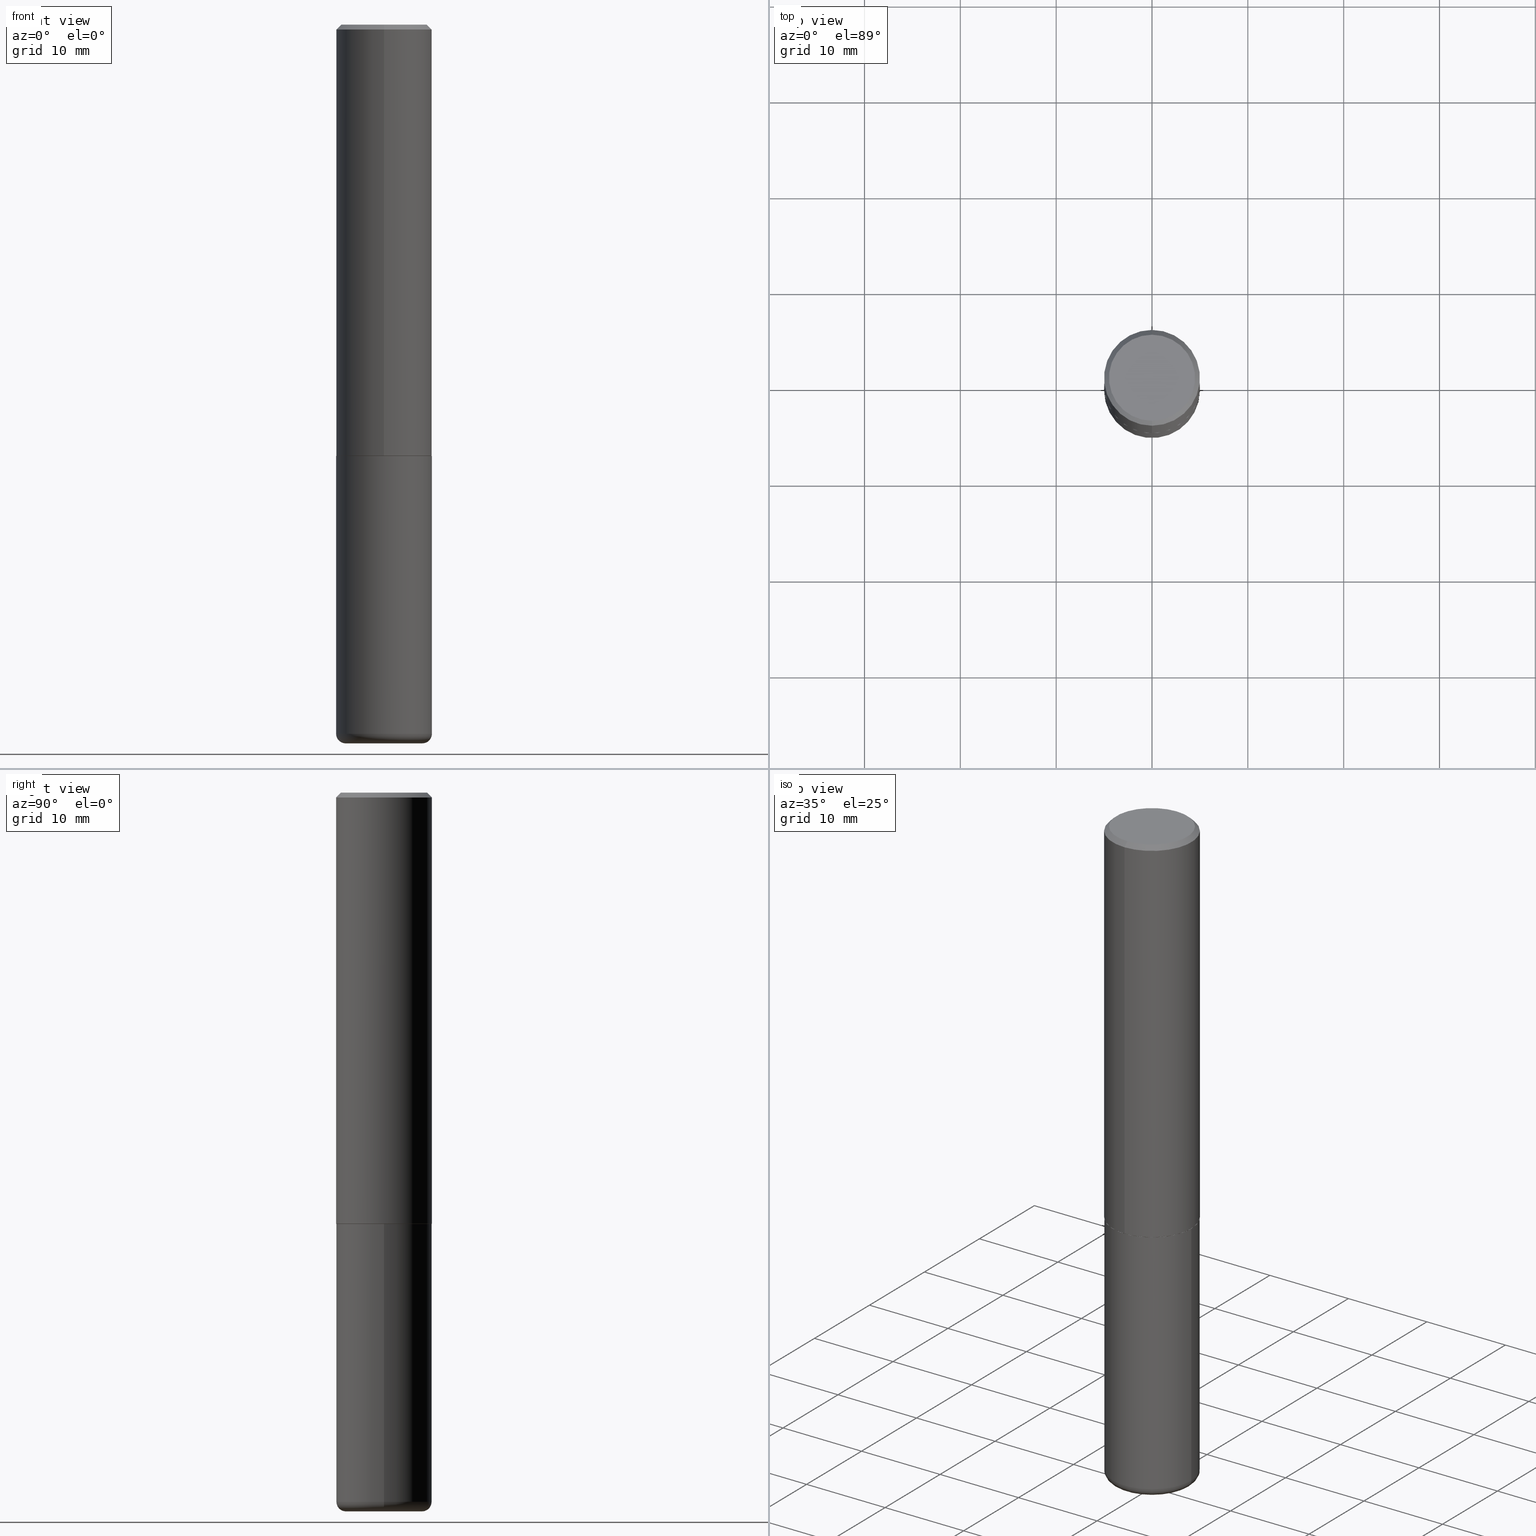
[diagram: canonical four-view strip — front | top / right | iso, engineering-drawing reading convention]
A machine part, canonical four-view strip (front | top / right | iso — engineering-drawing reading convention). The complete STEP part file that produces these views, byte-faithful:
ISO-10303-21;
HEADER;
FILE_DESCRIPTION (( 'STEP AP203' ),
    '1' );
FILE_NAME ('47519.STEP',
    '2024-03-06T06:23:53',
    ( '' ),
    ( '' ),
    'SwSTEP 2.0',
    'SolidWorks 2023',
    '' );
FILE_SCHEMA (( 'CONFIG_CONTROL_DESIGN' ));
ENDSEC;

DATA;
#1 = AXIS2_PLACEMENT_3D ( 'NONE', #383, #378, #322 ) ;
#2 = CC_DESIGN_SECURITY_CLASSIFICATION ( #193, ( #373 ) ) ;
#3 = DIRECTION ( 'NONE',  ( 6.982962677686265133E-15, 1.000000000000000000, -3.491137977679279029E-15 ) ) ;
#4 = PRODUCT_RELATED_PRODUCT_CATEGORY ( 'detail', '', ( #194 ) ) ;
#5 = DIRECTION ( 'NONE',  ( -2.445468806185136877E-29, 3.491481338843145188E-15, 1.000000000000000000 ) ) ;
#6 = FACE_OUTER_BOUND ( 'NONE', #246, .T. ) ;
#7 = CARTESIAN_POINT ( 'NONE',  ( 4.327538351314362007E-29, -6.186165631462201115E-15, -1.770699999999999497 ) ) ;
#8 = VECTOR ( 'NONE', #235, 39.37007874015748143 ) ;
#9 = LOCAL_TIME ( 1, 23, 53.00000000000000000, #136 ) ;
#10 = ORIENTED_EDGE ( 'NONE', *, *, #293, .T. ) ;
#11 = DIRECTION ( 'NONE',  ( -2.443970379688463607E-29, 3.493627170871520955E-15, 1.000000000000000000 ) ) ;
#12 = CARTESIAN_POINT ( 'NONE',  ( 0.1968500000000000805, -1.154667793568816250E-14, -2.913399999999999768 ) ) ;
#13 = CARTESIAN_POINT ( 'NONE',  ( -0.1574500000000000066, -9.053332195131342510E-15, -2.913399999999999768 ) ) ;
#14 = AXIS2_PLACEMENT_3D ( 'NONE', #89, #355, #261 ) ;
#15 = VECTOR ( 'NONE', #142, 39.37007874015748143 ) ;
#16 = EDGE_LOOP ( 'NONE', ( #146, #401, #181, #184 ) ) ;
#17 = EDGE_LOOP ( 'NONE', ( #216, #52 ) ) ;
#18 = ORIENTED_EDGE ( 'NONE', *, *, #410, .F. ) ;
#19 = EDGE_CURVE ( 'NONE', #84, #118, #161, .T. ) ;
#20 = AXIS2_PLACEMENT_3D ( 'NONE', #44, #314, #280 ) ;
#21 = EDGE_LOOP ( 'NONE', ( #79, #150, #334, #408 ) ) ;
#22 = COORDINATED_UNIVERSAL_TIME_OFFSET ( 5, 0, .BEHIND. ) ;
#23 = APPROVAL_PERSON_ORGANIZATION ( #42, #289, #366 ) ;
#24 = DIRECTION ( 'NONE',  ( -2.445468806185136597E-29, 3.491481338843145583E-15, 1.000000000000000000 ) ) ;
#25 = DIRECTION ( 'NONE',  ( -2.443970379688463607E-29, 3.493627170871520955E-15, 1.000000000000000000 ) ) ;
#26 = DIRECTION ( 'NONE',  ( -6.982962677686265133E-15, -1.000000000000000000, 3.491137977679279029E-15 ) ) ;
#27 = CALENDAR_DATE ( 2024, 6, 3 ) ;
#28 = CIRCLE ( 'NONE', #365, 0.1768500000000002570 ) ;
#29 = CARTESIAN_POINT ( 'NONE',  ( 4.329982321694049862E-29, -6.189659258633071898E-15, -1.771699999999999608 ) ) ;
#30 = PERSON_AND_ORGANIZATION_ROLE ( 'design_supplier' ) ;
#31 = EDGE_CURVE ( 'NONE', #80, #180, #177, .T. ) ;
#32 = AXIS2_PLACEMENT_3D ( 'NONE', #45, #174, #303 ) ;
#33 = DIRECTION ( 'NONE',  ( 2.443970379688463607E-29, -3.493627170871520955E-15, -1.000000000000000000 ) ) ;
#34 = CARTESIAN_POINT ( 'NONE',  ( -0.1968500000000000527, 1.398703375343757590E-15, -9.682923725166785079E-30 ) ) ;
#35 = CARTESIAN_POINT ( 'NONE',  ( 7.220980290903470182E-29, -1.030964609733603853E-14, -2.952799999999999869 ) ) ;
#36 = ADVANCED_FACE ( 'NONE', ( #357 ), #105, .T. ) ;
#37 = DIRECTION ( 'NONE',  ( 6.982962677686265922E-15, 1.000000000000000000, -3.493627170871520561E-15 ) ) ;
#38 = CARTESIAN_POINT ( 'NONE',  ( 5.937032679118867305E-45, -8.486919012809721302E-31, -2.429257215415053213E-16 ) ) ;
#39 = CIRCLE ( 'NONE', #351, 0.1968500000000000527 ) ;
#40 = CIRCLE ( 'NONE', #219, 0.03940000000000009467 ) ;
#41 = CARTESIAN_POINT ( 'NONE',  ( 4.887940759376938213E-31, -6.987254341743056504E-17, -0.02000000000000004205 ) ) ;
#42 = PERSON_AND_ORGANIZATION ( #229, #295 ) ;
#43 = DIRECTION ( 'NONE',  ( -1.000000000000000000, 7.105427357601008170E-15, 0.000000000000000000 ) ) ;
#44 = CARTESIAN_POINT ( 'NONE',  ( 4.329982321694049862E-29, -6.189659258633071898E-15, -1.771699999999999608 ) ) ;
#45 = CARTESIAN_POINT ( 'NONE',  ( 7.124628819939776708E-29, -1.017208173258561931E-14, -2.913399999999999768 ) ) ;
#46 = ORIENTED_EDGE ( 'NONE', *, *, #330, .F. ) ;
#47 = AXIS2_PLACEMENT_3D ( 'NONE', #335, #68, #339 ) ;
#48 = VERTEX_POINT ( 'NONE', #92 ) ;
#49 = ORIENTED_EDGE ( 'NONE', *, *, #265, .F. ) ;
#50 = DIRECTION ( 'NONE',  ( 5.024295867788490741E-15, 0.7071067811866103003, 0.7071067811864847341 ) ) ;
#51 = EDGE_CURVE ( 'NONE', #118, #110, #169, .T. ) ;
#52 = ORIENTED_EDGE ( 'NONE', *, *, #396, .F. ) ;
#53 = VECTOR ( 'NONE', #190, 39.37007874015748143 ) ;
#54 = CIRCLE ( 'NONE', #371, 0.1574500000000000066 ) ;
#55 = VERTEX_POINT ( 'NONE', #196 ) ;
#56 = CARTESIAN_POINT ( 'NONE',  ( 0.000000000000000000, 0.000000000000000000, 0.000000000000000000 ) ) ;
#57 = EDGE_CURVE ( 'NONE', #362, #349, #39, .T. ) ;
#58 = CARTESIAN_POINT ( 'NONE',  ( 1.398703375343757985E-15, 0.1968500000000001360, -6.877205085860593881E-16 ) ) ;
#59 = PLANE ( 'NONE',  #398 ) ;
#60 = APPROVAL_DATE_TIME ( #379, #364 ) ;
#61 = EDGE_CURVE ( 'NONE', #409, #188, #70, .T. ) ;
#62 = CARTESIAN_POINT ( 'NONE',  ( 1.234936949548817970E-15, 0.1768500000000002570, -7.393108259393820014E-16 ) ) ;
#63 = DIRECTION ( 'NONE',  ( 2.443970379688463607E-29, -3.493627170871520561E-15, -1.000000000000000000 ) ) ;
#64 = AXIS2_PLACEMENT_3D ( 'NONE', #41, #11, #91 ) ;
#65 = CC_DESIGN_APPROVAL ( #364, ( #373 ) ) ;
#66 = DIRECTION ( 'NONE',  ( -6.982962677686265922E-15, -1.000000000000000000, 4.163344669033670112E-15 ) ) ;
#67 = DIRECTION ( 'NONE',  ( 4.937700262164545676E-15, 0.7071067811865447972, -0.7071067811865502373 ) ) ;
#68 = DIRECTION ( 'NONE',  ( -2.443970379688463607E-29, 3.493627170871520955E-15, 1.000000000000000000 ) ) ;
#69 = MANIFOLD_SOLID_BREP ( 'Body-Move/Copy2[1]', #88 ) ;
#70 = CIRCLE ( 'NONE', #286, 0.1958499999999999963 ) ;
#71 = VECTOR ( 'NONE', #273, 39.37007874015748143 ) ;
#72 = APPROVAL_PERSON_ORGANIZATION ( #264, #364, #358 ) ;
#73 = CALENDAR_DATE ( 2024, 6, 3 ) ;
#74 = DIRECTION ( 'NONE',  ( -6.982962677686265922E-15, -1.000000000000000000, 3.493627170871521350E-15 ) ) ;
#75 = DIRECTION ( 'NONE',  ( 1.000000000000000000, -6.982962677686266711E-15, 0.000000000000000000 ) ) ;
#76 = ADVANCED_FACE ( 'NONE', ( #412 ), #126, .T. ) ;
#77 = APPLICATION_CONTEXT ( 'configuration controlled 3d designs of mechanical parts and assemblies' ) ;
#78 = ORIENTED_EDGE ( 'NONE', *, *, #270, .F. ) ;
#79 = ORIENTED_EDGE ( 'NONE', *, *, #147, .F. ) ;
#80 = VERTEX_POINT ( 'NONE', #159 ) ;
#81 =( CONVERSION_BASED_UNIT ( 'INCH', #310 ) LENGTH_UNIT ( ) NAMED_UNIT ( #234 ) );
#82 = EDGE_CURVE ( 'NONE', #180, #80, #317, .T. ) ;
#83 = LINE ( 'NONE', #347, #207 ) ;
#84 = VERTEX_POINT ( 'NONE', #324 ) ;
#85 = ORIENTED_EDGE ( 'NONE', *, *, #231, .T. ) ;
#86 = ADVANCED_FACE ( 'NONE', ( #227 ), #240, .T. ) ;
#87 = DIRECTION ( 'NONE',  ( 1.000000000000000000, -6.982962677686264344E-15, 4.883557194083112340E-29 ) ) ;
#88 = CLOSED_SHELL ( 'NONE', ( #112, #86, #96, #187, #345, #312 ) ) ;
#89 = CARTESIAN_POINT ( 'NONE',  ( 4.332637083918205306E-29, -6.185857488028398715E-15, -1.771699999999999608 ) ) ;
#90 = AXIS2_PLACEMENT_3D ( 'NONE', #183, #171, #66 ) ;
#91 = DIRECTION ( 'NONE',  ( -6.982962677686265133E-15, -1.000000000000000000, 3.491137977679279029E-15 ) ) ;
#92 = CARTESIAN_POINT ( 'NONE',  ( 1.304766576325680085E-15, 0.1768500000000002570, -8.607736867101346867E-16 ) ) ;
#93 = LINE ( 'NONE', #34, #341 ) ;
#94 = EDGE_LOOP ( 'NONE', ( #116, #10, #139, #148 ) ) ;
#95 = PRODUCT_DEFINITION_SHAPE ( 'NONE', 'NONE',  #359 ) ;
#96 = ADVANCED_FACE ( 'NONE', ( #153 ), #59, .F. ) ;
#97 = ORIENTED_EDGE ( 'NONE', *, *, #224, .T. ) ;
#98 = CARTESIAN_POINT ( 'NONE',  ( -0.1574500000000000066, -8.982137458561812020E-15, -2.952799999999999869 ) ) ;
#99 = CIRCLE ( 'NONE', #47, 0.1768500000000002570 ) ;
#100 = CARTESIAN_POINT ( 'NONE',  ( -1.350489030861325626E-15, -0.1968500000000001082, -0.01999999999999935510 ) ) ;
#101 = ORIENTED_EDGE ( 'NONE', *, *, #61, .T. ) ;
#102 = LINE ( 'NONE', #363, #263 ) ;
#103 = DIRECTION ( 'NONE',  ( -6.982962677686265922E-15, -1.000000000000000000, 3.493627170871520955E-15 ) ) ;
#104 = CYLINDRICAL_SURFACE ( 'NONE', #115, 0.1968500000000001360 ) ;
#105 = CONICAL_SURFACE ( 'NONE', #406, 0.1958499999999999963, 0.7853981633975336552 ) ;
#106 = CC_DESIGN_PERSON_AND_ORGANIZATION_ASSIGNMENT ( #418, #387, ( #193 ) ) ;
#107 = CIRCLE ( 'NONE', #384, 0.1574500000000000066 ) ;
#108 = VERTEX_POINT ( 'NONE', #157 ) ;
#109 = DIRECTION ( 'NONE',  ( -2.443970379688463607E-29, 3.493627170871520955E-15, 1.000000000000000000 ) ) ;
#110 = VERTEX_POINT ( 'NONE', #120 ) ;
#111 = DIRECTION ( 'NONE',  ( 1.000000000000000000, -6.982962677686265922E-15, 0.000000000000000000 ) ) ;
#112 = ADVANCED_FACE ( 'NONE', ( #220 ), #260, .T. ) ;
#113 = ORIENTED_EDGE ( 'NONE', *, *, #155, .T. ) ;
#114 = CARTESIAN_POINT ( 'NONE',  ( 7.124628819939776708E-29, -1.017208173258561931E-14, -2.913399999999999768 ) ) ;
#115 = AXIS2_PLACEMENT_3D ( 'NONE', #241, #245, #367 ) ;
#116 = ORIENTED_EDGE ( 'NONE', *, *, #243, .T. ) ;
#117 = APPLICATION_PROTOCOL_DEFINITION ( 'international standard', 'config_control_design', 1994, #145 ) ;
#118 = VERTEX_POINT ( 'NONE', #380 ) ;
#119 = ADVANCED_FACE ( 'NONE', ( #296 ), #269, .F. ) ;
#120 = CARTESIAN_POINT ( 'NONE',  ( -1.350489030861325626E-15, -0.1968500000000001082, -0.01999999999999935510 ) ) ;
#121 = AXIS2_PLACEMENT_3D ( 'NONE', #114, #247, #75 ) ;
#122 = APPROVAL_DATE_TIME ( #308, #160 ) ;
#123 = CARTESIAN_POINT ( 'NONE',  ( 4.887940759376938213E-31, -6.987254341743056504E-17, -0.02000000000000004205 ) ) ;
#124 = DATE_AND_TIME ( #27, #415 ) ;
#125 = ADVANCED_FACE ( 'NONE', ( #331 ), #144, .T. ) ;
#126 = CONICAL_SURFACE ( 'NONE', #1, 0.1968500000000000527, 0.7853981633974479459 ) ;
#127 = DIRECTION ( 'NONE',  ( -2.443970379688463607E-29, 3.493627170871520955E-15, 1.000000000000000000 ) ) ;
#128 = DATE_TIME_ROLE ( 'creation_date' ) ;
#129 = DESIGN_CONTEXT ( 'detailed design', #145, 'design' ) ;
#130 = DIRECTION ( 'NONE',  ( -2.445468806185136597E-29, 3.491481338843145583E-15, 1.000000000000000000 ) ) ;
#131 = COORDINATED_UNIVERSAL_TIME_OFFSET ( 5, 0, .BEHIND. ) ;
#132 = DIRECTION ( 'NONE',  ( -2.443970379688463607E-29, 3.493627170871520955E-15, 1.000000000000000000 ) ) ;
#133 = LINE ( 'NONE', #135, #71 ) ;
#134 = AXIS2_PLACEMENT_3D ( 'NONE', #62, #63, #37 ) ;
#135 = CARTESIAN_POINT ( 'NONE',  ( 0.1968500000000000527, -1.374596203102542003E-15, 9.598753983154302260E-30 ) ) ;
#136 = COORDINATED_UNIVERSAL_TIME_OFFSET ( 5, 0, .BEHIND. ) ;
#137 = PLANE ( 'NONE',  #242 ) ;
#138 = CARTESIAN_POINT ( 'NONE',  ( 4.887940759376938213E-31, -6.987254341743056504E-17, -0.02000000000000004205 ) ) ;
#139 = ORIENTED_EDGE ( 'NONE', *, *, #57, .F. ) ;
#140 = DIRECTION ( 'NONE',  ( 2.438088387897960049E-29, -3.491481338843145188E-15, -1.000000000000000000 ) ) ;
#141 = ORIENTED_EDGE ( 'NONE', *, *, #323, .F. ) ;
#142 = DIRECTION ( 'NONE',  ( -2.443970379688463326E-29, 3.493627170871520561E-15, 1.000000000000000000 ) ) ;
#143 = AXIS2_PLACEMENT_3D ( 'NONE', #205, #127, #201 ) ;
#144 = CONICAL_SURFACE ( 'NONE', #164, 0.1968500000000000527, 0.7853981633974479459 ) ;
#145 = APPLICATION_CONTEXT ( 'configuration controlled 3d designs of mechanical parts and assemblies' ) ;
#146 = ORIENTED_EDGE ( 'NONE', *, *, #293, .F. ) ;
#147 = EDGE_CURVE ( 'NONE', #349, #80, #93, .T. ) ;
#148 = ORIENTED_EDGE ( 'NONE', *, *, #178, .F. ) ;
#149 = DIRECTION ( 'NONE',  ( 0.000000000000000000, 0.000000000000000000, 1.000000000000000000 ) ) ;
#150 = ORIENTED_EDGE ( 'NONE', *, *, #258, .T. ) ;
#151 = CARTESIAN_POINT ( 'NONE',  ( 0.000000000000000000, 0.000000000000000000, 0.000000000000000000 ) ) ;
#152 = ORIENTED_EDGE ( 'NONE', *, *, #51, .F. ) ;
#153 = FACE_OUTER_BOUND ( 'NONE', #279, .T. ) ;
#154 = DIRECTION ( 'NONE',  ( -6.982962677686265922E-15, -1.000000000000000000, 4.184602492209747448E-15 ) ) ;
#155 = EDGE_CURVE ( 'NONE', #108, #84, #306, .T. ) ;
#156 = UNCERTAINTY_MEASURE_WITH_UNIT (LENGTH_MEASURE( 1.000000000000000082E-05 ), #81, 'distance_accuracy_value', 'NONE');
#157 = CARTESIAN_POINT ( 'NONE',  ( -1.374596203102499996E-15, -0.1968500000000064365, -1.770699999999998608 ) ) ;
#158 = CARTESIAN_POINT ( 'NONE',  ( 4.329982321694049862E-29, -6.189659258633071898E-15, -1.771699999999999608 ) ) ;
#159 = CARTESIAN_POINT ( 'NONE',  ( -0.1968500000000000250, -6.780266234963251621E-15, -1.771699999999999608 ) ) ;
#160 = APPROVAL ( #189, 'UNSPECIFIED' ) ;
#161 = LINE ( 'NONE', #58, #53 ) ;
#162 = DIRECTION ( 'NONE',  ( -2.443970379688463607E-29, 3.493627170871520955E-15, 1.000000000000000000 ) ) ;
#163 = AXIS2_PLACEMENT_3D ( 'NONE', #195, #24, #87 ) ;
#164 = AXIS2_PLACEMENT_3D ( 'NONE', #138, #33, #3 ) ;
#165 = ADVANCED_FACE ( 'NONE', ( #333 ), #327, .T. ) ;
#166 = DATE_AND_TIME ( #73, #9 ) ;
#167 = DIRECTION ( 'NONE',  ( -6.982962677686266711E-15, -1.000000000000000000, 3.491481338843145583E-15 ) ) ;
#168 = CARTESIAN_POINT ( 'NONE',  ( 0.1574500000000000066, -1.127154920618732249E-14, -2.913399999999999768 ) ) ;
#169 = CIRCLE ( 'NONE', #226, 0.1968500000000000527 ) ;
#170 = ORIENTED_EDGE ( 'NONE', *, *, #265, .T. ) ;
#171 = DIRECTION ( 'NONE',  ( -2.443970379688463607E-29, 3.493627170871520955E-15, 1.000000000000000000 ) ) ;
#172 = CC_DESIGN_DATE_AND_TIME_ASSIGNMENT ( #124, #128, ( #359 ) ) ;
#173 = DATE_TIME_ROLE ( 'classification_date' ) ;
#174 = DIRECTION ( 'NONE',  ( -2.445468806185136597E-29, 3.491481338843145583E-15, 1.000000000000000000 ) ) ;
#175 = FACE_OUTER_BOUND ( 'NONE', #16, .T. ) ;
#176 = VERTEX_POINT ( 'NONE', #302 ) ;
#177 = CIRCLE ( 'NONE', #213, 0.1968500000000000250 ) ;
#178 = EDGE_CURVE ( 'NONE', #176, #362, #40, .T. ) ;
#179 = AXIS2_PLACEMENT_3D ( 'NONE', #7, #162, #385 ) ;
#180 = VERTEX_POINT ( 'NONE', #393 ) ;
#181 = ORIENTED_EDGE ( 'NONE', *, *, #178, .T. ) ;
#182 = PERSON_AND_ORGANIZATION ( #229, #295 ) ;
#183 = CARTESIAN_POINT ( 'NONE',  ( 4.327538351314362007E-29, -6.186165631462201115E-15, -1.770699999999999497 ) ) ;
#184 = ORIENTED_EDGE ( 'NONE', *, *, #258, .F. ) ;
#185 = PERSON_AND_ORGANIZATION ( #229, #295 ) ;
#186 = CIRCLE ( 'NONE', #64, 0.1968500000000000527 ) ;
#187 = ADVANCED_FACE ( 'NONE', ( #395 ), #294, .T. ) ;
#188 = VERTEX_POINT ( 'NONE', #267 ) ;
#189 = APPROVAL_STATUS ( 'not_yet_approved' ) ;
#190 = DIRECTION ( 'NONE',  ( -2.443970379688463326E-29, 3.493627170871520561E-15, 1.000000000000000000 ) ) ;
#191 = EDGE_CURVE ( 'NONE', #362, #180, #133, .T. ) ;
#192 = CIRCLE ( 'NONE', #121, 0.1968500000000000527 ) ;
#193 = SECURITY_CLASSIFICATION ( '', '', #292 ) ;
#194 = PRODUCT ( '47519', '47519', '', ( #350 ) ) ;
#195 = CARTESIAN_POINT ( 'NONE',  ( 7.124628819939776708E-29, -1.017208173258561931E-14, -2.913399999999999768 ) ) ;
#196 = CARTESIAN_POINT ( 'NONE',  ( -1.281884050883611478E-15, -0.1768500000000002570, 3.749222436271242413E-16 ) ) ;
#197 = PERSON_AND_ORGANIZATION ( #229, #295 ) ;
#198 = DIRECTION ( 'NONE',  ( -4.851104656540961908E-15, -0.7071067811865496822, -0.7071067811865453523 ) ) ;
#199 = DIRECTION ( 'NONE',  ( 1.000000000000000000, -6.982962677686267499E-15, 0.000000000000000000 ) ) ;
#200 = COORDINATED_UNIVERSAL_TIME_OFFSET ( 5, 0, .BEHIND. ) ;
#201 = DIRECTION ( 'NONE',  ( -6.982962677686265922E-15, -1.000000000000000000, 4.184602492209747448E-15 ) ) ;
#202 = CIRCLE ( 'NONE', #336, 0.03940000000000009467 ) ;
#203 = LINE ( 'NONE', #391, #15 ) ;
#204 = EDGE_CURVE ( 'NONE', #55, #110, #388, .T. ) ;
#205 = CARTESIAN_POINT ( 'NONE',  ( 4.329982321694049862E-29, -6.189659258633071898E-15, -1.771699999999999608 ) ) ;
#206 = CARTESIAN_POINT ( 'NONE',  ( 0.000000000000000000, 0.000000000000000000, 0.000000000000000000 ) ) ;
#207 = VECTOR ( 'NONE', #50, 39.37007874015748143 ) ;
#208 = CARTESIAN_POINT ( 'NONE',  ( 1.395150661665000474E-15, 0.1958499999999938346, -1.771700000000000497 ) ) ;
#209 = CARTESIAN_POINT ( 'NONE',  ( 4.329982321694049862E-29, -6.189659258633071898E-15, -1.771699999999999608 ) ) ;
#210 = EDGE_LOOP ( 'NONE', ( #78, #101, #268, #399 ) ) ;
#211 = LINE ( 'NONE', #298, #8 ) ;
#212 = ORIENTED_EDGE ( 'NONE', *, *, #283, .T. ) ;
#213 = AXIS2_PLACEMENT_3D ( 'NONE', #416, #221, #199 ) ;
#214 = AXIS2_PLACEMENT_3D ( 'NONE', #209, #311, #282 ) ;
#215 = EDGE_LOOP ( 'NONE', ( #170, #370, #375, #18 ) ) ;
#216 = ORIENTED_EDGE ( 'NONE', *, *, #243, .F. ) ;
#217 = CC_DESIGN_PERSON_AND_ORGANIZATION_ASSIGNMENT ( #325, #30, ( #373 ) ) ;
#218 = ORIENTED_EDGE ( 'NONE', *, *, #204, .F. ) ;
#219 = AXIS2_PLACEMENT_3D ( 'NONE', #168, #167, #237 ) ;
#220 = FACE_OUTER_BOUND ( 'NONE', #404, .T. ) ;
#221 = DIRECTION ( 'NONE',  ( -2.445468806185136597E-29, 3.491481338843145583E-15, 1.000000000000000000 ) ) ;
#222 = MANIFOLD_SOLID_BREP ( 'Body-Move/Copy2[2]', #276 ) ;
#223 = PERSON_AND_ORGANIZATION_ROLE ( 'creator' ) ;
#224 = EDGE_CURVE ( 'NONE', #48, #118, #102, .T. ) ;
#225 = ORIENTED_EDGE ( 'NONE', *, *, #147, .T. ) ;
#226 = AXIS2_PLACEMENT_3D ( 'NONE', #123, #320, #26 ) ;
#227 = FACE_OUTER_BOUND ( 'NONE', #94, .T. ) ;
#228 = APPROVAL_STATUS ( 'not_yet_approved' ) ;
#229 = PERSON ( 'UNSPECIFIED', 'UNSPECIFIED', 'UNSPECIFIED', ('UNSPECIFIED'), ('UNSPECIFIED'), ('UNSPECIFIED') ) ;
#230 = PLANE ( 'NONE',  #20 ) ;
#231 = EDGE_CURVE ( 'NONE', #110, #118, #186, .T. ) ;
#232 = CIRCLE ( 'NONE', #90, 0.1968500000000002470 ) ;
#233 = LOCAL_TIME ( 1, 23, 53.00000000000000000, #266 ) ;
#234 = DIMENSIONAL_EXPONENTS ( 1.000000000000000000, 0.000000000000000000, 0.000000000000000000, 0.000000000000000000, 0.000000000000000000, 0.000000000000000000, 0.000000000000000000 ) ;
#235 = DIRECTION ( 'NONE',  ( -4.937700262164969294E-15, -0.7071067811866054154, 0.7071067811864896191 ) ) ;
#236 = ADVANCED_FACE ( 'NONE', ( #326 ), #230, .F. ) ;
#237 = DIRECTION ( 'NONE',  ( 1.000000000000000000, -6.982962677686261189E-15, 0.000000000000000000 ) ) ;
#238 = FACE_OUTER_BOUND ( 'NONE', #17, .T. ) ;
#239 = DATE_AND_TIME ( #297, #250 ) ;
#240 = TOROIDAL_SURFACE ( 'NONE', #163, 0.1574500000000000066, 0.03940000000000008079 ) ;
#241 = CARTESIAN_POINT ( 'NONE',  ( 0.000000000000000000, 0.000000000000000000, 0.000000000000000000 ) ) ;
#242 = AXIS2_PLACEMENT_3D ( 'NONE', #304, #140, #337 ) ;
#243 = EDGE_CURVE ( 'NONE', #176, #374, #107, .T. ) ;
#244 = ORIENTED_EDGE ( 'NONE', *, *, #57, .T. ) ;
#245 = DIRECTION ( 'NONE',  ( -2.443970379688463607E-29, 3.493627170871520955E-15, 1.000000000000000000 ) ) ;
#246 = EDGE_LOOP ( 'NONE', ( #113, #368, #248, #284 ) ) ;
#247 = DIRECTION ( 'NONE',  ( -2.445468806185136597E-29, 3.491481338843145583E-15, 1.000000000000000000 ) ) ;
#248 = ORIENTED_EDGE ( 'NONE', *, *, #231, .F. ) ;
#249 =( LENGTH_UNIT ( ) NAMED_UNIT ( * ) SI_UNIT ( $, .METRE. ) );
#250 = LOCAL_TIME ( 1, 23, 53.00000000000000000, #131 ) ;
#251 = EDGE_LOOP ( 'NONE', ( #372, #212, #390, #152 ) ) ;
#252 = CC_DESIGN_PERSON_AND_ORGANIZATION_ASSIGNMENT ( #356, #321, ( #359 ) ) ;
#253 = ORIENTED_EDGE ( 'NONE', *, *, #82, .F. ) ;
#254 = DIRECTION ( 'NONE',  ( -1.000000000000000000, 6.982962677686265922E-15, -4.876176775795935793E-29 ) ) ;
#255 =( NAMED_UNIT ( * ) PLANE_ANGLE_UNIT ( ) SI_UNIT ( $, .RADIAN. ) );
#256 = AXIS2_PLACEMENT_3D ( 'NONE', #328, #130, #301 ) ;
#257 = ADVANCED_BREP_SHAPE_REPRESENTATION ( '47519', ( #69, #222, #318 ), #407 ) ;
#258 = EDGE_CURVE ( 'NONE', #349, #362, #192, .T. ) ;
#259 = CALENDAR_DATE ( 2024, 6, 3 ) ;
#260 = CYLINDRICAL_SURFACE ( 'NONE', #291, 0.1968500000000000527 ) ;
#261 = DIRECTION ( 'NONE',  ( 1.000000000000000000, -6.982962677686267499E-15, 0.000000000000000000 ) ) ;
#262 = DIRECTION ( 'NONE',  ( 1.000000000000000000, -6.982962677686266711E-15, 0.000000000000000000 ) ) ;
#263 = VECTOR ( 'NONE', #67, 39.37007874015748143 ) ;
#264 = PERSON_AND_ORGANIZATION ( #229, #295 ) ;
#265 = EDGE_CURVE ( 'NONE', #188, #409, #414, .T. ) ;
#266 = COORDINATED_UNIVERSAL_TIME_OFFSET ( 5, 0, .BEHIND. ) ;
#267 = CARTESIAN_POINT ( 'NONE',  ( -1.367613240424812009E-15, -0.1958500000000061858, -1.771699999999998720 ) ) ;
#268 = ORIENTED_EDGE ( 'NONE', *, *, #410, .T. ) ;
#269 = PLANE ( 'NONE',  #134 ) ;
#270 = EDGE_CURVE ( 'NONE', #409, #84, #83, .T. ) ;
#271 = TOROIDAL_SURFACE ( 'NONE', #32, 0.1574500000000000066, 0.03940000000000008079 ) ;
#272 = ORIENTED_EDGE ( 'NONE', *, *, #204, .T. ) ;
#273 = DIRECTION ( 'NONE',  ( -2.445468806185136877E-29, 3.491481338843145188E-15, 1.000000000000000000 ) ) ;
#274 = APPROVAL_DATE_TIME ( #166, #289 ) ;
#275 = DIRECTION ( 'NONE',  ( 7.105427357601001859E-15, 1.000000000000000000, -3.491481338843145583E-15 ) ) ;
#276 = CLOSED_SHELL ( 'NONE', ( #36, #305, #125, #76, #382, #165, #236, #119 ) ) ;
#277 = EDGE_LOOP ( 'NONE', ( #309, #394 ) ) ;
#278 = LOCAL_TIME ( 1, 23, 53.00000000000000000, #22 ) ;
#279 = EDGE_LOOP ( 'NONE', ( #315, #342 ) ) ;
#280 = DIRECTION ( 'NONE',  ( -6.982962677686265922E-15, -1.000000000000000000, 3.493627170871520561E-15 ) ) ;
#281 = EDGE_LOOP ( 'NONE', ( #141, #272, #85, #340 ) ) ;
#282 = DIRECTION ( 'NONE',  ( -6.982962677686265922E-15, -1.000000000000000000, 4.184602492209747448E-15 ) ) ;
#283 = EDGE_CURVE ( 'NONE', #84, #108, #232, .T. ) ;
#284 = ORIENTED_EDGE ( 'NONE', *, *, #299, .F. ) ;
#285 = DIRECTION ( 'NONE',  ( 1.000000000000000000, 0.000000000000000000, 0.000000000000000000 ) ) ;
#286 = AXIS2_PLACEMENT_3D ( 'NONE', #158, #25, #154 ) ;
#287 = EDGE_LOOP ( 'NONE', ( #49, #307 ) ) ;
#288 = CALENDAR_DATE ( 2024, 6, 3 ) ;
#289 = APPROVAL ( #389, 'UNSPECIFIED' ) ;
#290 = DIRECTION ( 'NONE',  ( -2.445468806185136597E-29, 3.491481338843145583E-15, 1.000000000000000000 ) ) ;
#291 = AXIS2_PLACEMENT_3D ( 'NONE', #56, #290, #377 ) ;
#292 = SECURITY_CLASSIFICATION_LEVEL ( 'unclassified' ) ;
#293 = EDGE_CURVE ( 'NONE', #374, #349, #202, .T. ) ;
#294 = CYLINDRICAL_SURFACE ( 'NONE', #256, 0.1968500000000000527 ) ;
#295 = ORGANIZATION ( 'UNSPECIFIED', 'UNSPECIFIED', '' ) ;
#296 = FACE_OUTER_BOUND ( 'NONE', #277, .T. ) ;
#297 = CALENDAR_DATE ( 2024, 6, 3 ) ;
#298 = CARTESIAN_POINT ( 'NONE',  ( -1.367613240424812009E-15, -0.1958500000000061858, -1.771699999999998720 ) ) ;
#299 = EDGE_CURVE ( 'NONE', #108, #110, #203, .T. ) ;
#300 = SHAPE_DEFINITION_REPRESENTATION ( #95, #257 ) ;
#301 = DIRECTION ( 'NONE',  ( 1.000000000000000000, -6.982962677686266711E-15, 4.876176775795935793E-29 ) ) ;
#302 = CARTESIAN_POINT ( 'NONE',  ( 0.1574500000000000066, -1.140911357093774171E-14, -2.952799999999999869 ) ) ;
#303 = DIRECTION ( 'NONE',  ( 1.000000000000000000, -6.982962677686264344E-15, 4.883557194083112340E-29 ) ) ;
#304 = CARTESIAN_POINT ( 'NONE',  ( 7.220980290903470182E-29, -1.030964609733603853E-14, -2.952799999999999869 ) ) ;
#305 = ADVANCED_FACE ( 'NONE', ( #6 ), #332, .T. ) ;
#306 = CIRCLE ( 'NONE', #179, 0.1968500000000002470 ) ;
#307 = ORIENTED_EDGE ( 'NONE', *, *, #61, .F. ) ;
#308 = DATE_AND_TIME ( #288, #278 ) ;
#309 = ORIENTED_EDGE ( 'NONE', *, *, #330, .T. ) ;
#310 = LENGTH_MEASURE_WITH_UNIT ( LENGTH_MEASURE( 0.02539999999999999897 ), #249 );
#311 = DIRECTION ( 'NONE',  ( -2.443970379688463607E-29, 3.493627170871520955E-15, 1.000000000000000000 ) ) ;
#312 = ADVANCED_FACE ( 'NONE', ( #238 ), #137, .T. ) ;
#313 = PERSON_AND_ORGANIZATION_ROLE ( 'design_owner' ) ;
#314 = DIRECTION ( 'NONE',  ( -2.443970379688463607E-29, 3.493627170871520561E-15, 1.000000000000000000 ) ) ;
#315 = ORIENTED_EDGE ( 'NONE', *, *, #82, .T. ) ;
#316 = APPROVAL_ROLE ( '' ) ;
#317 = CIRCLE ( 'NONE', #14, 0.1968500000000000250 ) ;
#318 = AXIS2_PLACEMENT_3D ( 'NONE', #151, #149, #285 ) ;
#319 = ORIENTED_EDGE ( 'NONE', *, *, #51, .T. ) ;
#320 = DIRECTION ( 'NONE',  ( -2.443970379688463607E-29, 3.493627170871520955E-15, 1.000000000000000000 ) ) ;
#321 = PERSON_AND_ORGANIZATION_ROLE ( 'creator' ) ;
#322 = DIRECTION ( 'NONE',  ( 6.982962677686265133E-15, 1.000000000000000000, -3.491137977679279029E-15 ) ) ;
#323 = EDGE_CURVE ( 'NONE', #55, #48, #99, .T. ) ;
#324 = CARTESIAN_POINT ( 'NONE',  ( 1.398703375343780073E-15, 0.1968499999999940575, -1.770700000000000385 ) ) ;
#325 = PERSON_AND_ORGANIZATION ( #229, #295 ) ;
#326 = FACE_OUTER_BOUND ( 'NONE', #287, .T. ) ;
#327 = CONICAL_SURFACE ( 'NONE', #143, 0.1958499999999999963, 0.7853981633975336552 ) ;
#328 = CARTESIAN_POINT ( 'NONE',  ( 0.000000000000000000, 0.000000000000000000, 0.000000000000000000 ) ) ;
#329 = CC_DESIGN_APPROVAL ( #160, ( #359 ) ) ;
#330 = EDGE_CURVE ( 'NONE', #48, #55, #28, .T. ) ;
#331 = FACE_OUTER_BOUND ( 'NONE', #281, .T. ) ;
#332 = CYLINDRICAL_SURFACE ( 'NONE', #360, 0.1968500000000001360 ) ;
#333 = FACE_OUTER_BOUND ( 'NONE', #210, .T. ) ;
#334 = ORIENTED_EDGE ( 'NONE', *, *, #191, .T. ) ;
#335 = CARTESIAN_POINT ( 'NONE',  ( 5.937032679118867305E-45, -8.486919012809721302E-31, -2.429257215415053213E-16 ) ) ;
#336 = AXIS2_PLACEMENT_3D ( 'NONE', #13, #275, #43 ) ;
#337 = DIRECTION ( 'NONE',  ( -1.000000000000000000, 6.982962677686265922E-15, -4.876176775795935793E-29 ) ) ;
#338 = CC_DESIGN_PERSON_AND_ORGANIZATION_ASSIGNMENT ( #182, #313, ( #194 ) ) ;
#339 = DIRECTION ( 'NONE',  ( -6.982962677686265922E-15, -1.000000000000000000, 3.493627170871521350E-15 ) ) ;
#340 = ORIENTED_EDGE ( 'NONE', *, *, #224, .F. ) ;
#341 = VECTOR ( 'NONE', #5, 39.37007874015748143 ) ;
#342 = ORIENTED_EDGE ( 'NONE', *, *, #31, .T. ) ;
#343 = APPLICATION_PROTOCOL_DEFINITION ( 'international standard', 'config_control_design', 1994, #77 ) ;
#344 = CC_DESIGN_APPROVAL ( #289, ( #193 ) ) ;
#345 = ADVANCED_FACE ( 'NONE', ( #175 ), #271, .T. ) ;
#346 = ORIENTED_EDGE ( 'NONE', *, *, #191, .F. ) ;
#347 = CARTESIAN_POINT ( 'NONE',  ( 1.391597947986199181E-15, 0.1958499999999938346, -1.771700000000000497 ) ) ;
#348 = EDGE_LOOP ( 'NONE', ( #218, #46, #97, #319 ) ) ;
#349 = VERTEX_POINT ( 'NONE', #400 ) ;
#350 = MECHANICAL_CONTEXT ( 'NONE', #77, 'mechanical' ) ;
#351 = AXIS2_PLACEMENT_3D ( 'NONE', #354, #381, #262 ) ;
#352 = APPROVAL_PERSON_ORGANIZATION ( #185, #160, #316 ) ;
#353 = CC_DESIGN_PERSON_AND_ORGANIZATION_ASSIGNMENT ( #197, #223, ( #373 ) ) ;
#354 = CARTESIAN_POINT ( 'NONE',  ( 7.124628819939776708E-29, -1.017208173258561931E-14, -2.913399999999999768 ) ) ;
#355 = DIRECTION ( 'NONE',  ( -2.445468806185136597E-29, 3.491481338843145583E-15, 1.000000000000000000 ) ) ;
#356 = PERSON_AND_ORGANIZATION ( #229, #295 ) ;
#357 = FACE_OUTER_BOUND ( 'NONE', #215, .T. ) ;
#358 = APPROVAL_ROLE ( '' ) ;
#359 = PRODUCT_DEFINITION ( 'UNKNOWN', '', #373, #129 ) ;
#360 = AXIS2_PLACEMENT_3D ( 'NONE', #206, #132, #103 ) ;
#361 = DIRECTION ( 'NONE',  ( 1.000000000000000000, -6.982962677686265922E-15, 0.000000000000000000 ) ) ;
#362 = VERTEX_POINT ( 'NONE', #12 ) ;
#363 = CARTESIAN_POINT ( 'NONE',  ( 1.374596203102542200E-15, 0.1968499999999999694, -0.02000000000000072900 ) ) ;
#364 = APPROVAL ( #228, 'UNSPECIFIED' ) ;
#365 = AXIS2_PLACEMENT_3D ( 'NONE', #38, #109, #74 ) ;
#366 = APPROVAL_ROLE ( '' ) ;
#367 = DIRECTION ( 'NONE',  ( -6.982962677686265922E-15, -1.000000000000000000, 3.493627170871520955E-15 ) ) ;
#368 = ORIENTED_EDGE ( 'NONE', *, *, #19, .T. ) ;
#369 = DIRECTION ( 'NONE',  ( -2.445468806185136597E-29, 3.491481338843145583E-15, 1.000000000000000000 ) ) ;
#370 = ORIENTED_EDGE ( 'NONE', *, *, #270, .T. ) ;
#371 = AXIS2_PLACEMENT_3D ( 'NONE', #35, #369, #361 ) ;
#372 = ORIENTED_EDGE ( 'NONE', *, *, #19, .F. ) ;
#373 = PRODUCT_DEFINITION_FORMATION_WITH_SPECIFIED_SOURCE ( 'ANY', '', #194, .NOT_KNOWN. ) ;
#374 = VERTEX_POINT ( 'NONE', #98 ) ;
#375 = ORIENTED_EDGE ( 'NONE', *, *, #155, .F. ) ;
#376 = CC_DESIGN_DATE_AND_TIME_ASSIGNMENT ( #239, #173, ( #193 ) ) ;
#377 = DIRECTION ( 'NONE',  ( 1.000000000000000000, -6.982962677686266711E-15, 4.876176775795935793E-29 ) ) ;
#378 = DIRECTION ( 'NONE',  ( 2.443970379688463607E-29, -3.493627170871520955E-15, -1.000000000000000000 ) ) ;
#379 = DATE_AND_TIME ( #259, #233 ) ;
#380 = CARTESIAN_POINT ( 'NONE',  ( 1.374596203102542200E-15, 0.1968499999999999694, -0.02000000000000072900 ) ) ;
#381 = DIRECTION ( 'NONE',  ( -2.445468806185136597E-29, 3.491481338843145583E-15, 1.000000000000000000 ) ) ;
#382 = ADVANCED_FACE ( 'NONE', ( #397 ), #104, .T. ) ;
#383 = CARTESIAN_POINT ( 'NONE',  ( 4.887940759376938213E-31, -6.987254341743056504E-17, -0.02000000000000004205 ) ) ;
#384 = AXIS2_PLACEMENT_3D ( 'NONE', #403, #405, #111 ) ;
#385 = DIRECTION ( 'NONE',  ( -6.982962677686265922E-15, -1.000000000000000000, 4.163344669033670112E-15 ) ) ;
#386 = DIRECTION ( 'NONE',  ( -6.982962677686265922E-15, -1.000000000000000000, 4.184602492209747448E-15 ) ) ;
#387 = PERSON_AND_ORGANIZATION_ROLE ( 'classification_officer' ) ;
#388 = LINE ( 'NONE', #100, #392 ) ;
#389 = APPROVAL_STATUS ( 'not_yet_approved' ) ;
#390 = ORIENTED_EDGE ( 'NONE', *, *, #299, .T. ) ;
#391 = CARTESIAN_POINT ( 'NONE',  ( -1.374596203102542397E-15, -0.1968500000000001360, 6.877205085860593881E-16 ) ) ;
#392 = VECTOR ( 'NONE', #198, 39.37007874015748143 ) ;
#393 = CARTESIAN_POINT ( 'NONE',  ( 0.1968500000000000250, -7.560453691130941112E-15, -1.771699999999999608 ) ) ;
#394 = ORIENTED_EDGE ( 'NONE', *, *, #323, .T. ) ;
#395 = FACE_OUTER_BOUND ( 'NONE', #21, .T. ) ;
#396 = EDGE_CURVE ( 'NONE', #374, #176, #54, .T. ) ;
#397 = FACE_OUTER_BOUND ( 'NONE', #251, .T. ) ;
#398 = AXIS2_PLACEMENT_3D ( 'NONE', #411, #413, #254 ) ;
#399 = ORIENTED_EDGE ( 'NONE', *, *, #283, .F. ) ;
#400 = CARTESIAN_POINT ( 'NONE',  ( -0.1968500000000000805, -8.773378357241862315E-15, -2.913399999999999768 ) ) ;
#401 = ORIENTED_EDGE ( 'NONE', *, *, #396, .T. ) ;
#402 =( NAMED_UNIT ( * ) SI_UNIT ( $, .STERADIAN. ) SOLID_ANGLE_UNIT ( ) );
#403 = CARTESIAN_POINT ( 'NONE',  ( 7.220980290903470182E-29, -1.030964609733603853E-14, -2.952799999999999869 ) ) ;
#404 = EDGE_LOOP ( 'NONE', ( #244, #225, #253, #346 ) ) ;
#405 = DIRECTION ( 'NONE',  ( -2.445468806185136597E-29, 3.491481338843145583E-15, 1.000000000000000000 ) ) ;
#406 = AXIS2_PLACEMENT_3D ( 'NONE', #29, #417, #386 ) ;
#407 =( GEOMETRIC_REPRESENTATION_CONTEXT ( 3 ) GLOBAL_UNCERTAINTY_ASSIGNED_CONTEXT ( ( #156 ) ) GLOBAL_UNIT_ASSIGNED_CONTEXT ( ( #81, #255, #402 ) ) REPRESENTATION_CONTEXT ( 'NONE', 'WORKASPACE' ) );
#408 = ORIENTED_EDGE ( 'NONE', *, *, #31, .F. ) ;
#409 = VERTEX_POINT ( 'NONE', #208 ) ;
#410 = EDGE_CURVE ( 'NONE', #188, #108, #211, .T. ) ;
#411 = CARTESIAN_POINT ( 'NONE',  ( 4.332637083918205306E-29, -6.185857488028398715E-15, -1.771699999999999608 ) ) ;
#412 = FACE_OUTER_BOUND ( 'NONE', #348, .T. ) ;
#413 = DIRECTION ( 'NONE',  ( 2.438088387897960049E-29, -3.491481338843145188E-15, -1.000000000000000000 ) ) ;
#414 = CIRCLE ( 'NONE', #214, 0.1958499999999999963 ) ;
#415 = LOCAL_TIME ( 1, 23, 53.00000000000000000, #200 ) ;
#416 = CARTESIAN_POINT ( 'NONE',  ( 4.332637083918205306E-29, -6.185857488028398715E-15, -1.771699999999999608 ) ) ;
#417 = DIRECTION ( 'NONE',  ( -2.443970379688463607E-29, 3.493627170871520955E-15, 1.000000000000000000 ) ) ;
#418 = PERSON_AND_ORGANIZATION ( #229, #295 ) ;
ENDSEC;
END-ISO-10303-21;
